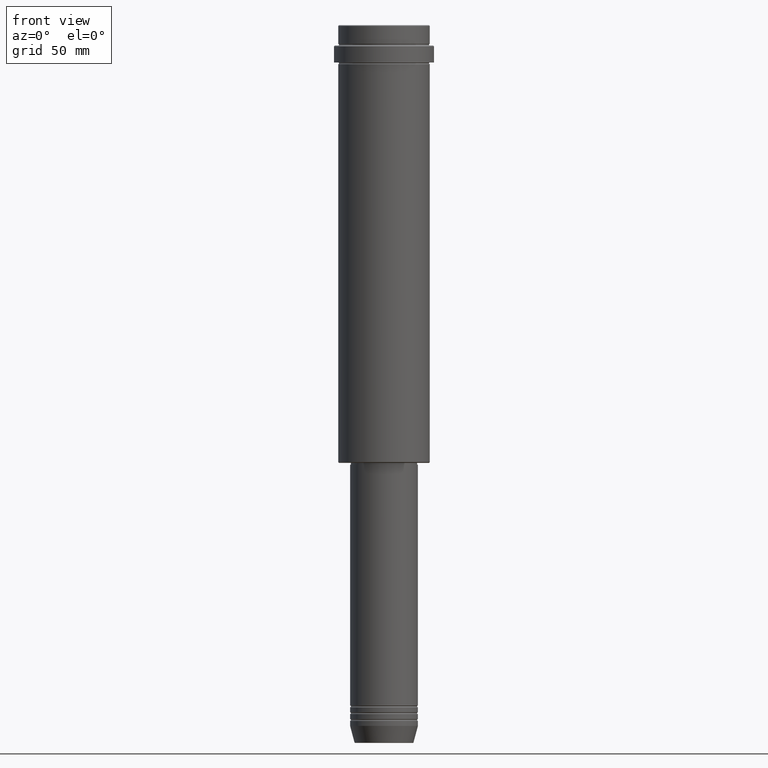
[diagram: clean part render]
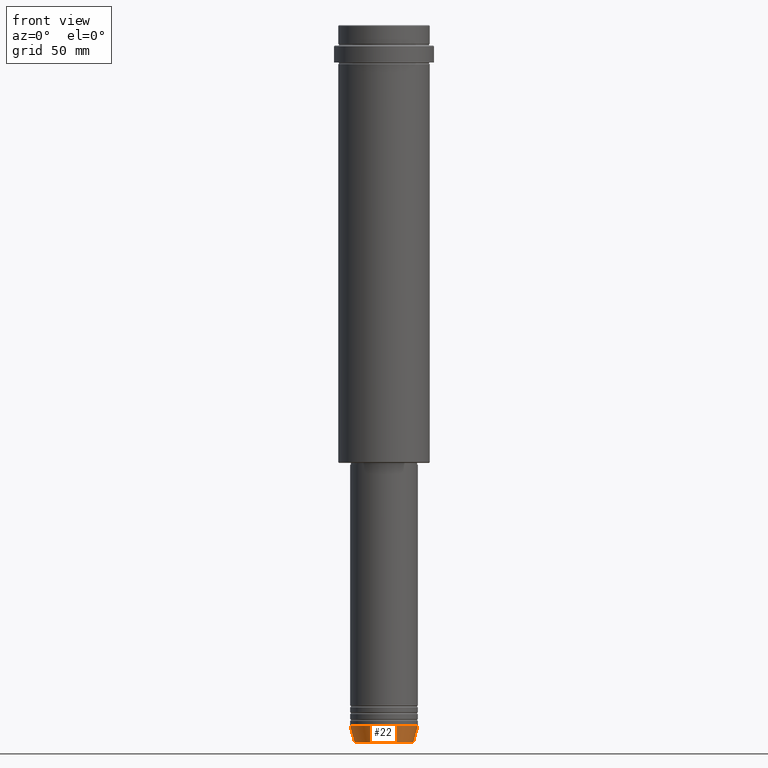
[diagram: same view with one face highlighted and labeled with its STEP entity id]
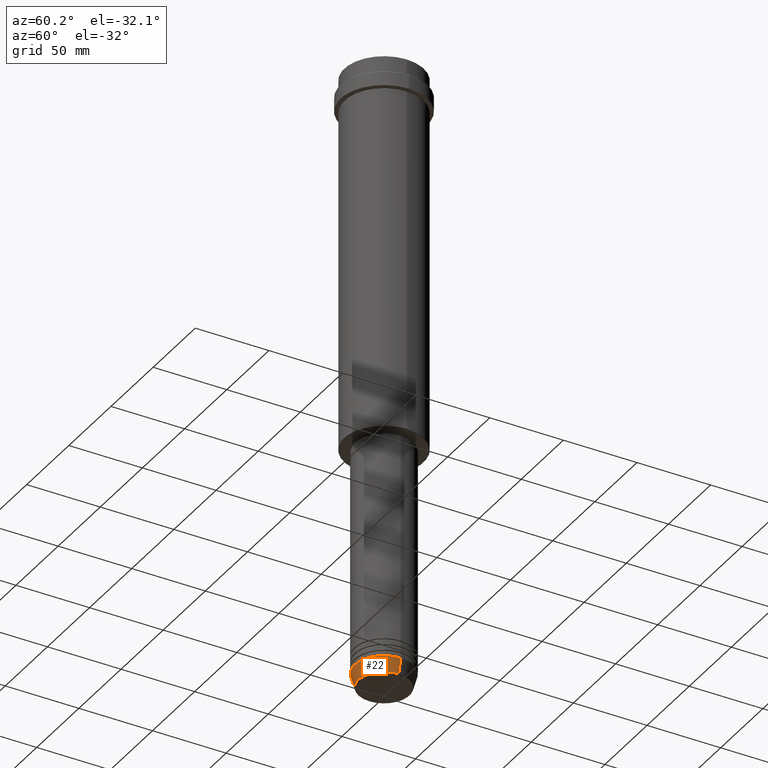
[diagram: same view with one face highlighted and labeled with its STEP entity id]
A machine part, front view. The second image highlights one B-rep face of the part: STEP entity #22.
A second angle (auxiliary view) of the same face is appended — the face is thin or edge-on in the first view.
In plain terms, the highlighted conical surface has half-angle 15 deg.
Its self-contained STEP definition (entity closure, byte-faithful):
#22 = ADVANCED_FACE ( 'NONE', ( #537 ), #762, .T. ) ;
#37 = VECTOR ( 'NONE', #153, 1000.000000000000114 ) ;
#43 = CARTESIAN_POINT ( 'NONE',  ( 0.000000000000000000, 0.000000000000000000, -422.6294095225512137 ) ) ;
#68 = CARTESIAN_POINT ( 'NONE',  ( -20.00000000000000000, 2.449293598294706513E-15, -413.0000000000000000 ) ) ;
#86 = DIRECTION ( 'NONE',  ( -0.000000000000000000, -0.000000000000000000, 1.000000000000000000 ) ) ;
#111 = VERTEX_POINT ( 'NONE', #1349 ) ;
#153 = DIRECTION ( 'NONE',  ( 0.2588190451025211836, 0.000000000000000000, 0.9659258262890680902 ) ) ;
#157 = EDGE_LOOP ( 'NONE', ( #1040, #787, #1097, #1167 ) ) ;
#162 = CARTESIAN_POINT ( 'NONE',  ( -17.41980749484382684, 2.291302373663531915E-15, -422.6294095225512137 ) ) ;
#239 = VERTEX_POINT ( 'NONE', #162 ) ;
#267 = CIRCLE ( 'NONE', #1060, 20.00000000000000000 ) ;
#278 = EDGE_CURVE ( 'NONE', #239, #111, #686, .T. ) ;
#289 = DIRECTION ( 'NONE',  ( 1.000000000000000000, 0.000000000000000000, 0.000000000000000000 ) ) ;
#368 = CARTESIAN_POINT ( 'NONE',  ( 20.00000000000000000, 0.000000000000000000, -413.0000000000000000 ) ) ;
#388 = DIRECTION ( 'NONE',  ( -0.000000000000000000, -0.000000000000000000, 1.000000000000000000 ) ) ;
#486 = VERTEX_POINT ( 'NONE', #942 ) ;
#537 = FACE_OUTER_BOUND ( 'NONE', #157, .T. ) ;
#552 = CARTESIAN_POINT ( 'NONE',  ( 0.000000000000000000, 0.000000000000000000, -413.0000000000000000 ) ) ;
#557 = VERTEX_POINT ( 'NONE', #784 ) ;
#653 = EDGE_CURVE ( 'NONE', #486, #557, #267, .T. ) ;
#686 = CIRCLE ( 'NONE', #1246, 17.41980749484382684 ) ;
#762 = CONICAL_SURFACE ( 'NONE', #938, 20.00000000000000000, 0.2617993877991499074 ) ;
#784 = CARTESIAN_POINT ( 'NONE',  ( 20.00000000000000000, 0.000000000000000000, -413.0000000000000000 ) ) ;
#787 = ORIENTED_EDGE ( 'NONE', *, *, #278, .T. ) ;
#818 = DIRECTION ( 'NONE',  ( -0.000000000000000000, -0.000000000000000000, 1.000000000000000000 ) ) ;
#824 = DIRECTION ( 'NONE',  ( 1.000000000000000000, 0.000000000000000000, 0.000000000000000000 ) ) ;
#938 = AXIS2_PLACEMENT_3D ( 'NONE', #552, #86, #966 ) ;
#942 = CARTESIAN_POINT ( 'NONE',  ( -20.00000000000000000, 2.449293598294706513E-15, -413.0000000000000000 ) ) ;
#966 = DIRECTION ( 'NONE',  ( 1.000000000000000000, 0.000000000000000000, 0.000000000000000000 ) ) ;
#1040 = ORIENTED_EDGE ( 'NONE', *, *, #1406, .F. ) ;
#1060 = AXIS2_PLACEMENT_3D ( 'NONE', #1094, #388, #824 ) ;
#1094 = CARTESIAN_POINT ( 'NONE',  ( 0.000000000000000000, 0.000000000000000000, -413.0000000000000000 ) ) ;
#1097 = ORIENTED_EDGE ( 'NONE', *, *, #1147, .T. ) ;
#1140 = LINE ( 'NONE', #368, #37 ) ;
#1147 = EDGE_CURVE ( 'NONE', #111, #557, #1140, .T. ) ;
#1167 = ORIENTED_EDGE ( 'NONE', *, *, #653, .F. ) ;
#1229 = VECTOR ( 'NONE', #1385, 1000.000000000000114 ) ;
#1246 = AXIS2_PLACEMENT_3D ( 'NONE', #43, #818, #289 ) ;
#1349 = CARTESIAN_POINT ( 'NONE',  ( 17.41980749484382684, 0.000000000000000000, -422.6294095225512137 ) ) ;
#1385 = DIRECTION ( 'NONE',  ( -0.2588190451025211836, 3.169619151431770488E-17, 0.9659258262890680902 ) ) ;
#1393 = LINE ( 'NONE', #68, #1229 ) ;
#1406 = EDGE_CURVE ( 'NONE', #239, #486, #1393, .T. ) ;